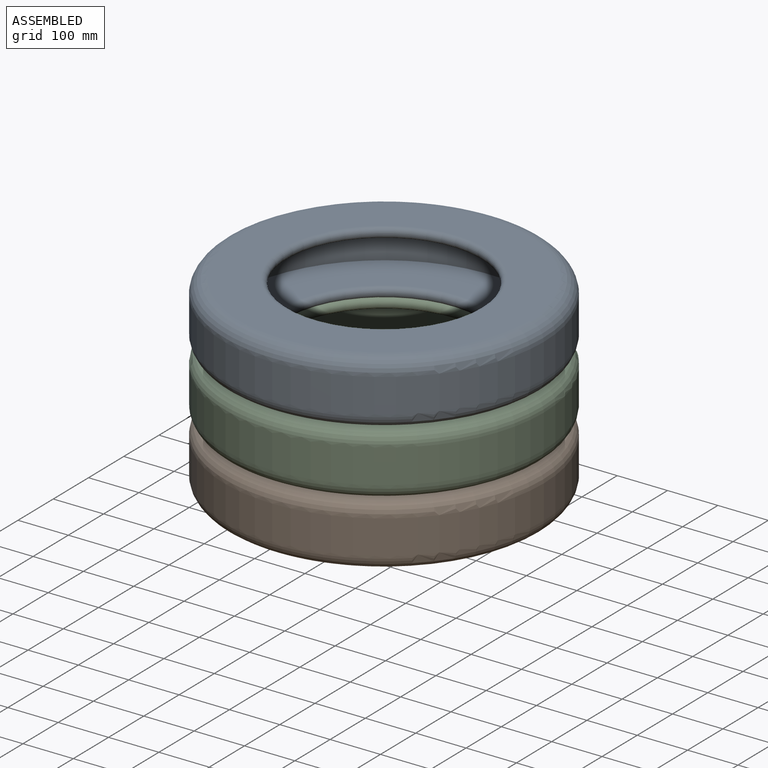
[diagram: assembled view]
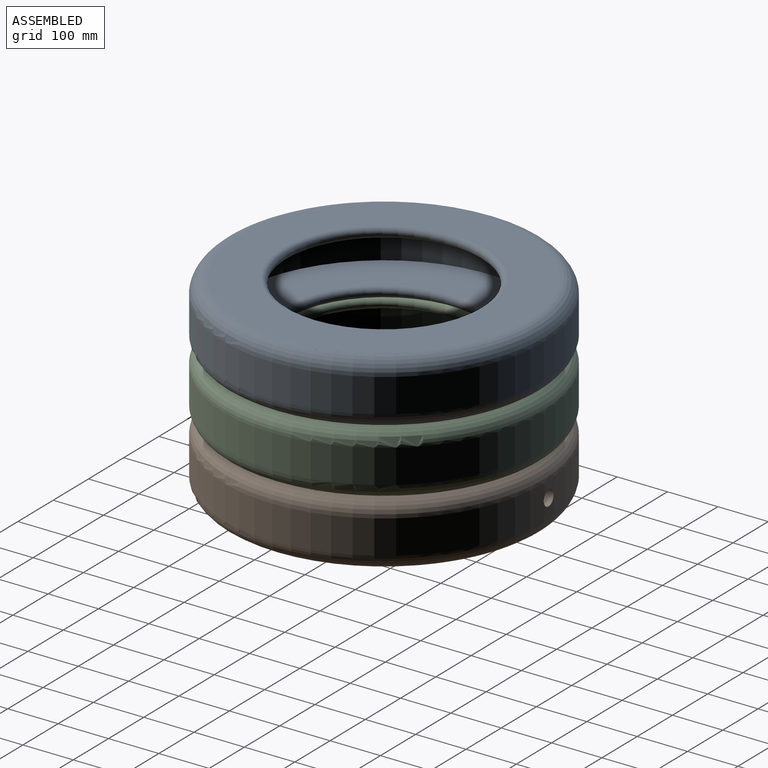
[diagram: assembled view, second angle]
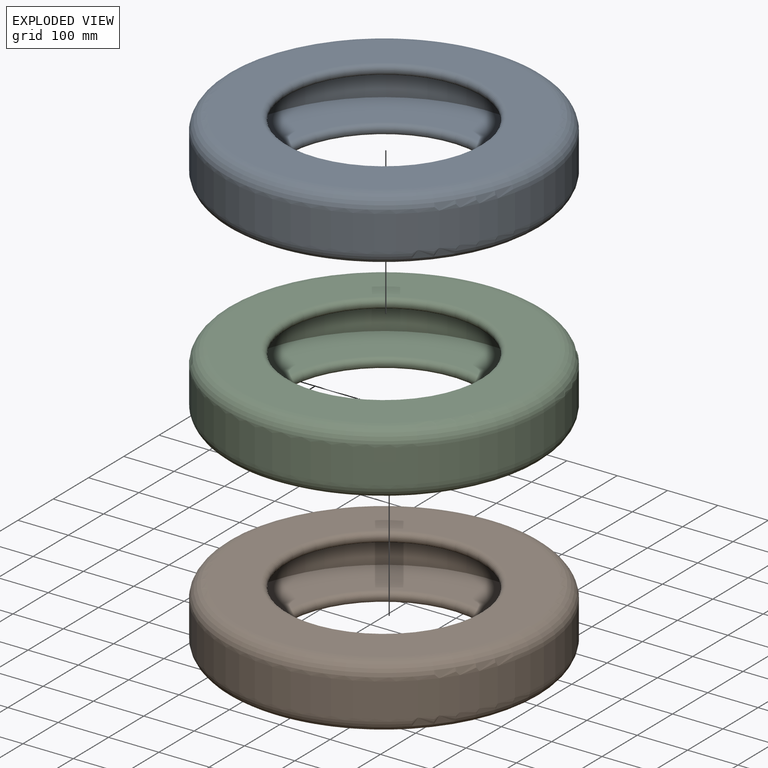
[diagram: exploded view]
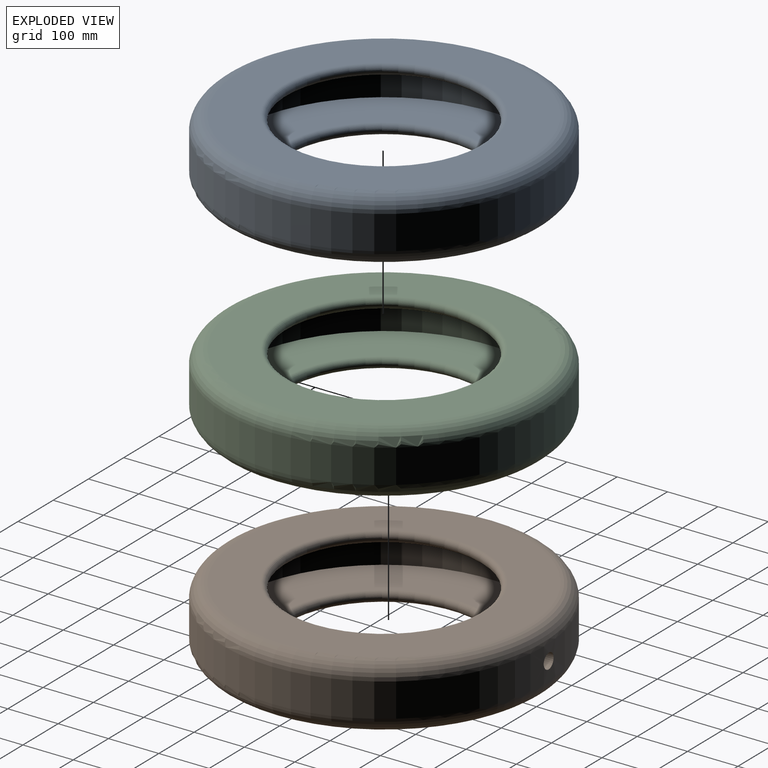
[diagram: exploded view, second angle]
ASSEMBLY  parts=3 mates=2
PART A: 10 faces, bbox 687.3x687.3x127 mm
  f0: cylinder r=317.5mm len=635mm, axis (0,0,-1), area 133659.1mm2, adj f6,f7
  f1: plane 575x575mm, normal (0,0,1), area 133379.5mm2, adj f7,f8
  f2: plane 575x575mm, normal (0,0,-1), area 133379.5mm2, adj f6,f9
  f3: cylinder r=297.5mm len=595mm, axis (0,0,-1), area 162624.5mm2, adj f4,f5
  f4: plane 595x595mm, normal (0,0,-1), area 151757.8mm2, adj f3,f8
  f5: plane 595x595mm, normal (0,0,1), area 151757.8mm2, adj f3,f9
  f6: torus R=287.5mm, axis (0,0,1), area 90780.2mm2, adj f0,f2
  f7: torus R=287.5mm, axis (0,0,1), area 90780.2mm2, adj f0,f1
  f8: torus R=200.5mm, axis (0,0,1), area 38320.5mm2, adj f1,f4
  f9: torus R=200.5mm, axis (0,0,1), area 38320.5mm2, adj f2,f5
PART B: 11 faces, bbox 687.3x687.3x127 mm
  f0: cylinder r=317.5mm len=635mm, axis (0,0,-1), area 132953.3mm2, adj f6,f7,f10
  f1: cylinder r=297.5mm len=595mm, axis (0,0,-1), area 161918.5mm2, adj f4,f5,f10
  f2: plane 575x575mm, normal (0,0,1), area 133379.5mm2, adj f7,f8
  f3: plane 575x575mm, normal (0,0,-1), area 133379.5mm2, adj f6,f9
  f4: plane 595x595mm, normal (0,0,-1), area 151757.8mm2, adj f1,f8
  f5: plane 595x595mm, normal (0,0,1), area 151757.8mm2, adj f1,f9
  f6: torus R=287.5mm, axis (0,0,1), area 90780.2mm2, adj f0,f3
  f7: torus R=287.5mm, axis (0,0,1), area 90780.2mm2, adj f0,f2
  f8: torus R=200.5mm, axis (0,0,1), area 38320.5mm2, adj f2,f4
  f9: torus R=200.5mm, axis (0,0,1), area 38320.5mm2, adj f3,f5
  f10: cylinder r=15mm len=30mm, axis (0,-1,0), area 1888.1mm2, adj f0,f1
PART C: same geometry as A
PLACE A t=(-0.66,-3.29,186.43)mm
PLACE B t=(-0.66,-3.29,-67.57)mm
PLACE C rot(axis=(1,0,0),180deg) t=(-0.66,-3.29,186.43)mm
MATE fastened B.f0 <-> C.f0  axis (0,0,1) through (-0.66,-3.29,59.43)mm
MATE fastened C.f0 <-> A.f0  axis (0,0,1) through (-0.66,-3.29,186.43)mm
